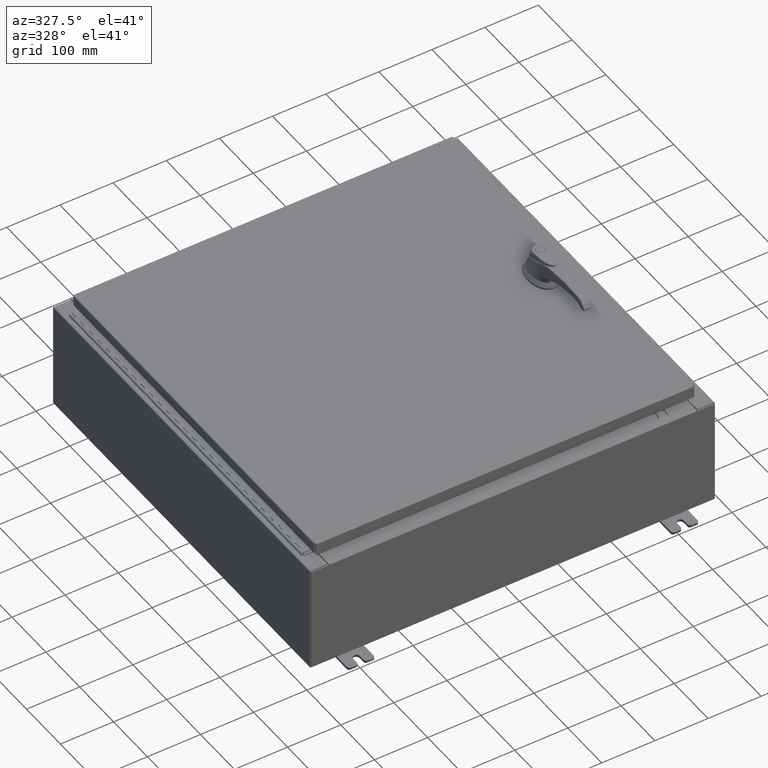
[diagram: clean part render]
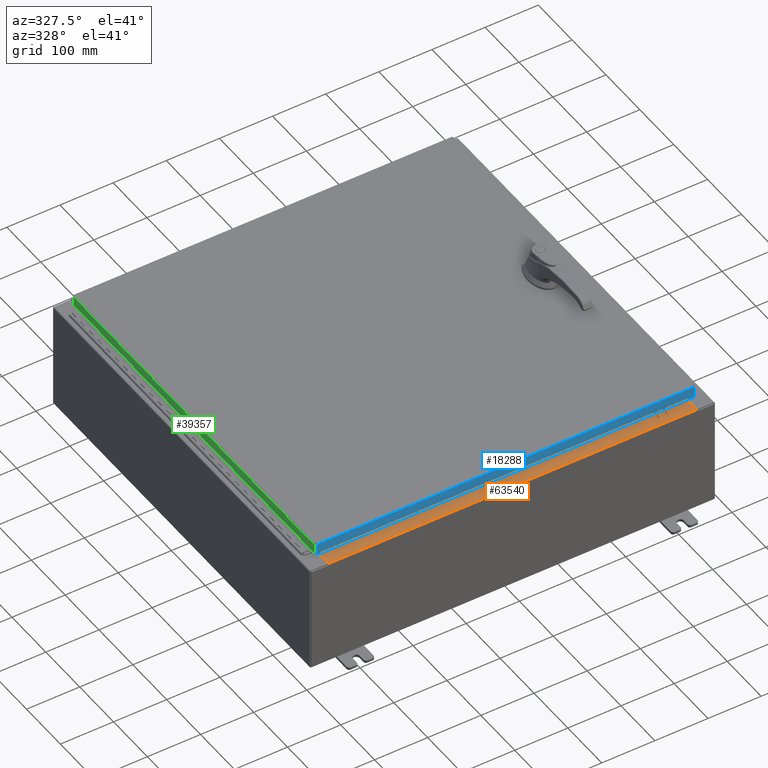
[diagram: same view with three faces highlighted in distinct colors, each labeled with its STEP entity id]
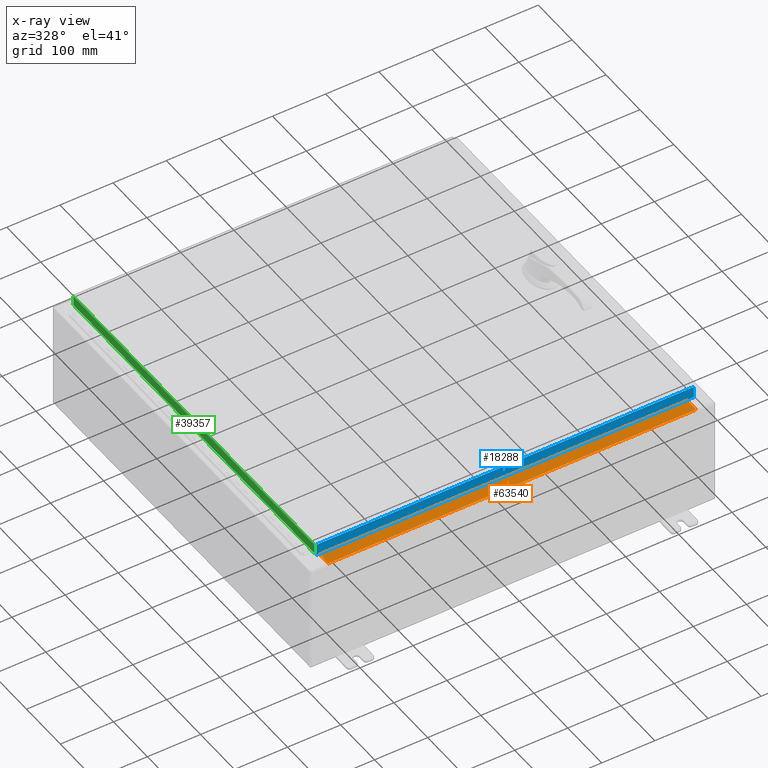
[diagram: x-ray of the same camera — body ghosted, the three highlighted faces saturated]
A machine part, auxiliary view with three faces highlighted in distinct colors.
The next image is the same camera in x-ray (body ghosted, the three faces saturated) — at least one of them is partly hidden behind the body in this view.
Their STEP definitions:

[orange] entity #63540 — the highlighted planar face has unit normal (-0, -0, 1).
#4056 = ORIENTED_EDGE ( 'NONE', *, *, #70276, .F. ) ;
#6233 = CARTESIAN_POINT ( 'NONE',  ( -13.63719999999999800, -0.07469999999999973900, 4.000000000000000000 ) ) ;
#7045 = CARTESIAN_POINT ( 'NONE',  ( -13.63719999999999800, -1.287299999999999200, 4.000000000000004400 ) ) ;
#10824 = VERTEX_POINT ( 'NONE', #53063 ) ;
#15751 = DIRECTION ( 'NONE',  ( -0.0000000000000000000, 1.000000000000000000, -3.566381192773190000E-015 ) ) ;
#20341 = VERTEX_POINT ( 'NONE', #35864 ) ;
#21927 = VECTOR ( 'NONE', #55792, 39.37007874015748100 ) ;
#25834 = EDGE_CURVE ( 'NONE', #20341, #10824, #96035, .T. ) ;
#27597 = LINE ( 'NONE', #37409, #21927 ) ;
#33113 = VERTEX_POINT ( 'NONE', #7045 ) ;
#35864 = CARTESIAN_POINT ( 'NONE',  ( 13.63720000000000400, -0.08769999999999965300, 4.000000000000000000 ) ) ;
#36324 = CARTESIAN_POINT ( 'NONE',  ( 13.63720000000000400, -1.287299999999999900, 4.000000000000004400 ) ) ;
#37268 = CARTESIAN_POINT ( 'NONE',  ( 13.63720000000000400, -1.287299999999999900, 4.000000000000003600 ) ) ;
#37409 = CARTESIAN_POINT ( 'NONE',  ( 13.63720000000000400, -1.300299999999999800, 4.000000000000004400 ) ) ;
#41278 = CARTESIAN_POINT ( 'NONE',  ( 0.0000000000000000000, 1.425992975200418500E-014, 4.000000000000000000 ) ) ;
#43203 = VERTEX_POINT ( 'NONE', #36324 ) ;
#45635 = LINE ( 'NONE', #37268, #118475 ) ;
#46661 = FACE_OUTER_BOUND ( 'NONE', #111973, .T. ) ;
#51273 = DIRECTION ( 'NONE',  ( 0.0000000000000000000, 3.566381192773190000E-015, 1.000000000000000000 ) ) ;
#53063 = CARTESIAN_POINT ( 'NONE',  ( -13.63719999999999800, -0.08770000000000000000, 4.000000000000000000 ) ) ;
#54845 = EDGE_CURVE ( 'NONE', #20341, #43203, #27597, .T. ) ;
#55792 = DIRECTION ( 'NONE',  ( -0.0000000000000000000, -1.000000000000000000, 3.566381192773190000E-015 ) ) ;
#59124 = VECTOR ( 'NONE', #15751, 39.37007874015748100 ) ;
#63540 = ADVANCED_FACE ( 'NONE', ( #46661 ), #69206, .T. ) ;
#69206 = PLANE ( 'NONE',  #80479 ) ;
#70276 = EDGE_CURVE ( 'NONE', #33113, #10824, #107651, .T. ) ;
#73076 = CARTESIAN_POINT ( 'NONE',  ( -1.756834753793995900E-018, -0.08770000000000000000, 4.000000000000000900 ) ) ;
#80479 = AXIS2_PLACEMENT_3D ( 'NONE', #41278, #51273, #115127 ) ;
#91970 = DIRECTION ( 'NONE',  ( -1.000000000000000000, 0.0000000000000000000, 0.0000000000000000000 ) ) ;
#96035 = LINE ( 'NONE', #73076, #117401 ) ;
#100643 = DIRECTION ( 'NONE',  ( -1.000000000000000000, 2.003232330437526000E-017, -7.144290108027600900E-032 ) ) ;
#104083 = ORIENTED_EDGE ( 'NONE', *, *, #54845, .F. ) ;
#105761 = ORIENTED_EDGE ( 'NONE', *, *, #107309, .F. ) ;
#107309 = EDGE_CURVE ( 'NONE', #43203, #33113, #45635, .T. ) ;
#107651 = LINE ( 'NONE', #6233, #59124 ) ;
#109395 = ORIENTED_EDGE ( 'NONE', *, *, #25834, .T. ) ;
#111973 = EDGE_LOOP ( 'NONE', ( #4056, #105761, #104083, #109395 ) ) ;
#115127 = DIRECTION ( 'NONE',  ( 0.0000000000000000000, -1.000000000000000000, 3.566381192773190000E-015 ) ) ;
#117401 = VECTOR ( 'NONE', #100643, 39.37007874015748100 ) ;
#118475 = VECTOR ( 'NONE', #91970, 39.37007874015748100 ) ;

[blue] entity #18288 — the highlighted planar face has unit normal (0, 1, -0).
#7261 = PLANE ( 'NONE',  #31663 ) ;
#9006 = ORIENTED_EDGE ( 'NONE', *, *, #83258, .F. ) ;
#9251 = EDGE_CURVE ( 'NONE', #37342, #68877, #104362, .T. ) ;
#18288 = ADVANCED_FACE ( 'NONE', ( #29607 ), #7261, .F. ) ;
#27066 = ORIENTED_EDGE ( 'NONE', *, *, #40157, .T. ) ;
#29607 = FACE_OUTER_BOUND ( 'NONE', #87040, .T. ) ;
#31663 = AXIS2_PLACEMENT_3D ( 'NONE', #89433, #34727, #98607 ) ;
#34727 = DIRECTION ( 'NONE',  ( 7.762034361881665100E-017, 1.000000000000000000, -2.532419924601866100E-015 ) ) ;
#37342 = VERTEX_POINT ( 'NONE', #56142 ) ;
#40157 = EDGE_CURVE ( 'NONE', #73494, #116569, #55432, .T. ) ;
#47820 = LINE ( 'NONE', #82968, #72066 ) ;
#48968 = CARTESIAN_POINT ( 'NONE',  ( -13.98915786437626900, -14.09400000000000500, -0.9376999999999962000 ) ) ;
#53655 = EDGE_CURVE ( 'NONE', #73494, #37342, #111989, .T. ) ;
#55432 = LINE ( 'NONE', #79702, #76816 ) ;
#56142 = CARTESIAN_POINT ( 'NONE',  ( 13.98915786437624000, -14.09400000000000500, -0.08769999999999898700 ) ) ;
#57064 = DIRECTION ( 'NONE',  ( -1.000000000000000000, 7.762034361881697200E-017, 1.261330583805776000E-016 ) ) ;
#68877 = VERTEX_POINT ( 'NONE', #117867 ) ;
#72066 = VECTOR ( 'NONE', #57064, 39.37007874015748100 ) ;
#73015 = ORIENTED_EDGE ( 'NONE', *, *, #53655, .F. ) ;
#73494 = VERTEX_POINT ( 'NONE', #108799 ) ;
#76816 = VECTOR ( 'NONE', #116071, 39.37007874015748100 ) ;
#79702 = CARTESIAN_POINT ( 'NONE',  ( -13.98915786437626700, -14.09400000000000300, 3.595274007335028700E-014 ) ) ;
#82968 = CARTESIAN_POINT ( 'NONE',  ( 14.07800000000000300, -14.09400000000000800, -0.9376999999999997600 ) ) ;
#83258 = EDGE_CURVE ( 'NONE', #68877, #116569, #47820, .T. ) ;
#87040 = EDGE_LOOP ( 'NONE', ( #73015, #27066, #9006, #92746 ) ) ;
#87810 = VECTOR ( 'NONE', #113383, 39.37007874015748100 ) ;
#89433 = CARTESIAN_POINT ( 'NONE',  ( -1.093981122963602000E-015, -14.09400000000000300, 3.595274007335028700E-014 ) ) ;
#92746 = ORIENTED_EDGE ( 'NONE', *, *, #9251, .F. ) ;
#98607 = DIRECTION ( 'NONE',  ( 0.0000000000000000000, 2.532419924601866100E-015, 1.000000000000000000 ) ) ;
#98773 = CARTESIAN_POINT ( 'NONE',  ( 13.98915786437627100, -14.09400000000000500, -0.07469999999999980800 ) ) ;
#104362 = LINE ( 'NONE', #98773, #107215 ) ;
#107215 = VECTOR ( 'NONE', #107918, 39.37007874015748100 ) ;
#107918 = DIRECTION ( 'NONE',  ( 0.0000000000000000000, -2.532419924601866100E-015, -1.000000000000000000 ) ) ;
#108799 = CARTESIAN_POINT ( 'NONE',  ( -13.98915786437626900, -14.09400000000000300, -0.08769999999999789100 ) ) ;
#111989 = LINE ( 'NONE', #112583, #87810 ) ;
#112583 = CARTESIAN_POINT ( 'NONE',  ( 14.07800000000000300, -14.09400000000000500, -0.08770000000000008300 ) ) ;
#113383 = DIRECTION ( 'NONE',  ( 1.000000000000000000, -7.762034361881684800E-017, -7.762034361881695900E-017 ) ) ;
#116071 = DIRECTION ( 'NONE',  ( 0.0000000000000000000, -2.532419924601866100E-015, -1.000000000000000000 ) ) ;
#116569 = VERTEX_POINT ( 'NONE', #48968 ) ;
#117867 = CARTESIAN_POINT ( 'NONE',  ( 13.98915786437627100, -14.09400000000000800, -0.9376999999999997600 ) ) ;

[green] entity #39357 — the highlighted planar face has unit normal (1, 0, -0).
#7412 = CARTESIAN_POINT ( 'NONE',  ( -14.07799999999999900, -14.09400000000000100, -0.7949999999999997100 ) ) ;
#11397 = VECTOR ( 'NONE', #62032, 39.37007874015748100 ) ;
#13498 = VECTOR ( 'NONE', #72146, 39.37007874015748100 ) ;
#17905 = VERTEX_POINT ( 'NONE', #96424 ) ;
#21643 = EDGE_CURVE ( 'NONE', #17905, #80077, #64878, .T. ) ;
#26155 = ORIENTED_EDGE ( 'NONE', *, *, #60332, .F. ) ;
#26831 = CARTESIAN_POINT ( 'NONE',  ( -14.07799999999999800, -5.174594759276017600E-030, 4.297518939368254200E-014 ) ) ;
#36381 = CARTESIAN_POINT ( 'NONE',  ( -14.07799999999999800, 14.00515786437626400, 1.407726840557262800E-013 ) ) ;
#36399 = PLANE ( 'NONE',  #108294 ) ;
#36639 = VECTOR ( 'NONE', #113715, 39.37007874015748100 ) ;
#37700 = LINE ( 'NONE', #99325, #13498 ) ;
#38911 = EDGE_CURVE ( 'NONE', #17905, #73450, #39504, .T. ) ;
#39357 = ADVANCED_FACE ( 'NONE', ( #95564 ), #36399, .F. ) ;
#39504 = LINE ( 'NONE', #40680, #36639 ) ;
#40651 = VECTOR ( 'NONE', #91076, 39.37007874015748100 ) ;
#40680 = CARTESIAN_POINT ( 'NONE',  ( -14.07799999999999800, -14.09400000000000100, -0.08770000000000004200 ) ) ;
#43848 = ORIENTED_EDGE ( 'NONE', *, *, #21643, .T. ) ;
#45589 = DIRECTION ( 'NONE',  ( 1.000000000000000000, 3.675660434206576600E-031, -3.034122441942816500E-015 ) ) ;
#46758 = CARTESIAN_POINT ( 'NONE',  ( -14.07799999999999900, 14.00515786437627100, -0.7949999999999962700 ) ) ;
#51780 = ORIENTED_EDGE ( 'NONE', *, *, #38911, .F. ) ;
#60332 = EDGE_CURVE ( 'NONE', #110069, #80077, #105683, .T. ) ;
#62032 = DIRECTION ( 'NONE',  ( -4.379057701015054300E-047, 1.000000000000000000, 1.211441035930299800E-016 ) ) ;
#64878 = LINE ( 'NONE', #36381, #40651 ) ;
#72146 = DIRECTION ( 'NONE',  ( -3.034122441942816500E-015, 6.982962677686265900E-015, -1.000000000000000000 ) ) ;
#73450 = VERTEX_POINT ( 'NONE', #90100 ) ;
#80077 = VERTEX_POINT ( 'NONE', #46758 ) ;
#84961 = ORIENTED_EDGE ( 'NONE', *, *, #97048, .F. ) ;
#90100 = CARTESIAN_POINT ( 'NONE',  ( -14.07799999999999800, -14.00515786437626900, -0.08770000000000007000 ) ) ;
#91076 = DIRECTION ( 'NONE',  ( -3.034122441942816500E-015, 6.982962677686265900E-015, -1.000000000000000000 ) ) ;
#95564 = FACE_OUTER_BOUND ( 'NONE', #116846, .T. ) ;
#96424 = CARTESIAN_POINT ( 'NONE',  ( -14.07799999999999800, 14.00515786437626400, -0.08770000000000004200 ) ) ;
#97048 = EDGE_CURVE ( 'NONE', #73450, #110069, #37700, .T. ) ;
#99325 = CARTESIAN_POINT ( 'NONE',  ( -14.07799999999999800, -14.00515786437627100, -0.07469999999999976700 ) ) ;
#100847 = CARTESIAN_POINT ( 'NONE',  ( -14.07799999999999900, -14.00515786437626500, -0.7949999999999996000 ) ) ;
#105683 = LINE ( 'NONE', #7412, #11397 ) ;
#108294 = AXIS2_PLACEMENT_3D ( 'NONE', #26831, #45589, #109422 ) ;
#109422 = DIRECTION ( 'NONE',  ( -3.034122441942816500E-015, 0.0000000000000000000, -1.000000000000000000 ) ) ;
#110069 = VERTEX_POINT ( 'NONE', #100847 ) ;
#113715 = DIRECTION ( 'NONE',  ( 3.675660434206577100E-031, -1.000000000000000000, -1.083515668565077200E-045 ) ) ;
#116846 = EDGE_LOOP ( 'NONE', ( #51780, #43848, #26155, #84961 ) ) ;